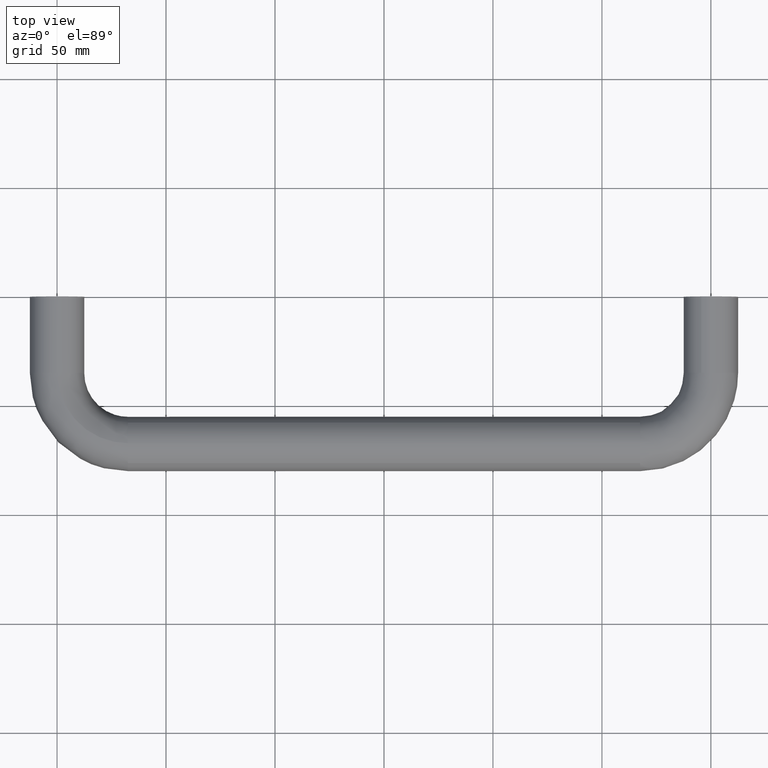
[diagram: clean part render]
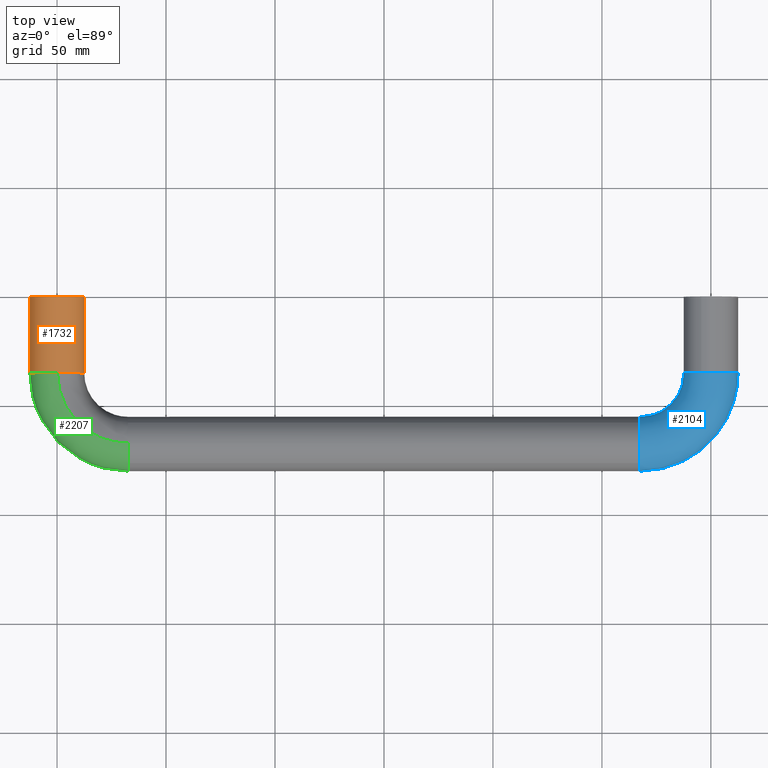
[diagram: same view with three faces highlighted in distinct colors, each labeled with its STEP entity id]
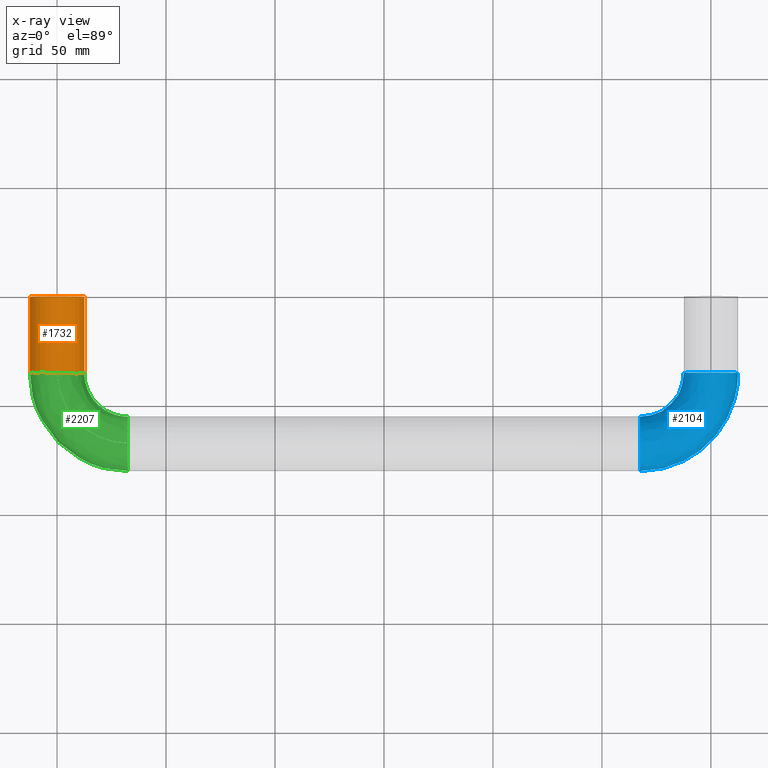
[diagram: x-ray of the same camera — body ghosted, the three highlighted faces saturated]
A machine part, top view with three faces highlighted in distinct colors.
The next image is the same camera in x-ray (body ghosted, the three faces saturated) — at least one of them is partly hidden behind the body in this view.
Their STEP definitions:

[orange] entity #1732 — the highlighted face is a freeform B-spline surface patch.
#1566=CARTESIAN_POINT('',(-4.395224679894646,0.875000000036383,-11.701794734708219));
#1567=CARTESIAN_POINT('',(-2.637368146442596,0.875000000036383,-12.362050242064381));
#1568=CARTESIAN_POINT('',(-0.763106744185705,0.875000000036383,-12.476684980273340));
#1569=CARTESIAN_POINT('',(11.713578236087629,0.875000000036383,-13.239791724459041));
#1570=CARTESIAN_POINT('',(12.476684980273340,0.875000000036383,-0.763106744185705));
#1571=CARTESIAN_POINT('',(13.239791724459041,0.875000000036383,11.713578236087629));
#1572=CARTESIAN_POINT('',(0.763106744185705,0.875000000036383,12.476684980273340));
#1573=CARTESIAN_POINT('',(-11.713578236087629,0.875000000036383,13.239791724459041));
#1574=CARTESIAN_POINT('',(-12.476684980273340,0.875000000036383,0.763106744185705));
#1575=CARTESIAN_POINT('',(-4.395224679894646,-35.896875001492582,-11.701794734708219));
#1576=CARTESIAN_POINT('',(-2.637368146442596,-35.896875001492589,-12.362050242064381));
#1577=CARTESIAN_POINT('',(-0.763106744185705,-35.896875001492582,-12.476684980273340));
#1578=CARTESIAN_POINT('',(11.713578236087629,-35.896875001492575,-13.239791724459041));
#1579=CARTESIAN_POINT('',(12.476684980273340,-35.896875001492582,-0.763106744185705));
#1580=CARTESIAN_POINT('',(13.239791724459041,-35.896875001492575,11.713578236087629));
#1581=CARTESIAN_POINT('',(0.763106744185705,-35.896875001492582,12.476684980273340));
#1582=CARTESIAN_POINT('',(-11.713578236087629,-35.896875001492575,13.239791724459041));
#1583=CARTESIAN_POINT('',(-12.476684980273340,-35.896875001492582,0.763106744185705));
#1591=(BOUNDED_SURFACE()B_SPLINE_SURFACE(2,1,((#1566,#1575),(#1567,#1576),(#1568,#1577),(#1569,#1578),(#1570,#1579),(#1571,#1580),(#1572,#1581),(#1573,#1582),(#1574,#1583)),.UNSPECIFIED.,.F.,.F.,.U.)B_SPLINE_SURFACE_WITH_KNOTS((3,2,2,2,3),(2,2),(0.0,4.142135623730949,24.852813742385699,45.563491861040447,66.274169979695188),(0.0,36.771875001528969),.UNSPECIFIED.)GEOMETRIC_REPRESENTATION_ITEM()RATIONAL_B_SPLINE_SURFACE(((0.906274169979695,0.906274169979695),(0.941421356237309,0.941421356237309),(1.0,1.0),(0.707106781186548,0.707106781186548),(1.0,1.0),(0.707106781186548,0.707106781186548),(1.0,1.0),(0.707106781186548,0.707106781186548),(1.0,1.0)))REPRESENTATION_ITEM('')SURFACE());
#1592=CARTESIAN_POINT('',(-4.395224680045374,-35.0,-11.701794734651610));
#1593=VERTEX_POINT('',#1592);
#1594=CARTESIAN_POINT('',(0.0,-35.0,-12.500000000000000));
#1595=VERTEX_POINT('',#1594);
#1596=CARTESIAN_POINT('',(-4.395224680045374,-35.0,-11.701794734651607));
#1597=CARTESIAN_POINT('',(-2.270092326000824,-35.0,-12.500000000000002));
#1598=CARTESIAN_POINT('',(0.0,-35.0,-12.500000000000000));
#1606=(BOUNDED_CURVE()B_SPLINE_CURVE(2,(#1596,#1597,#1598),.UNSPECIFIED.,.F.,.U.)B_SPLINE_CURVE_WITH_KNOTS((3,3),(0.440284170894841,0.500000000000000),.UNSPECIFIED.)CURVE()GEOMETRIC_REPRESENTATION_ITEM()RATIONAL_B_SPLINE_CURVE((0.893499554630786,0.930038554397103,1.0))REPRESENTATION_ITEM(''));
#1607=EDGE_CURVE('',#1593,#1595,#1606,.T.);
#1608=ORIENTED_EDGE('',*,*,#1607,.F.);
#1609=CARTESIAN_POINT('',(-4.395224680045374,1.225041E-015,-11.701794734651610));
#1610=VERTEX_POINT('',#1609);
#1611=CARTESIAN_POINT('',(-4.395224680045374,1.225041E-015,-11.701794734651610));
#1612=CARTESIAN_POINT('',(-4.395224680045374,-35.0,-11.701794734651610));
#1613=QUASI_UNIFORM_CURVE('',1,(#1611,#1612),.UNSPECIFIED.,.F.,.U.);
#1614=EDGE_CURVE('',#1610,#1593,#1613,.T.);
#1615=ORIENTED_EDGE('',*,*,#1614,.F.);
#1616=CARTESIAN_POINT('',(0.0,0.0,-12.500000000000000));
#1617=VERTEX_POINT('',#1616);
#1618=CARTESIAN_POINT('',(-4.395224680045374,1.225041E-015,-11.701794734651607));
#1619=CARTESIAN_POINT('',(-2.270092326000824,0.0,-12.500000000000002));
#1620=CARTESIAN_POINT('',(0.0,0.0,-12.500000000000000));
#1628=(BOUNDED_CURVE()B_SPLINE_CURVE(2,(#1618,#1619,#1620),.UNSPECIFIED.,.F.,.U.)B_SPLINE_CURVE_WITH_KNOTS((3,3),(0.440284170894841,0.500000000000000),.UNSPECIFIED.)CURVE()GEOMETRIC_REPRESENTATION_ITEM()RATIONAL_B_SPLINE_CURVE((0.893499554630786,0.930038554397103,1.0))REPRESENTATION_ITEM(''));
#1629=EDGE_CURVE('',#1610,#1617,#1628,.T.);
#1630=ORIENTED_EDGE('',*,*,#1629,.T.);
#1631=CARTESIAN_POINT('',(0.0,0.0,12.500000000000000));
#1632=VERTEX_POINT('',#1631);
#1633=CARTESIAN_POINT('',(0.0,0.0,-12.500000000000000));
#1634=CARTESIAN_POINT('',(12.499999999999998,0.0,-12.499999999999998));
#1635=CARTESIAN_POINT('',(12.500000000000000,0.0,0.0));
#1636=CARTESIAN_POINT('',(12.499999999999998,0.0,12.499999999999998));
#1637=CARTESIAN_POINT('',(0.0,0.0,12.500000000000000));
#1645=(BOUNDED_CURVE()B_SPLINE_CURVE(2,(#1633,#1634,#1635,#1636,#1637),.UNSPECIFIED.,.F.,.U.)B_SPLINE_CURVE_WITH_KNOTS((3,2,3),(0.500000000000000,0.750000000000000,1.0),.UNSPECIFIED.)CURVE()GEOMETRIC_REPRESENTATION_ITEM()RATIONAL_B_SPLINE_CURVE((1.0,0.707106781186547,1.0,0.707106781186547,1.0))REPRESENTATION_ITEM(''));
#1646=EDGE_CURVE('',#1617,#1632,#1645,.T.);
#1647=ORIENTED_EDGE('',*,*,#1646,.T.);
#1648=CARTESIAN_POINT('',(-12.476684980227059,1.221245E-015,0.763106744942284));
#1649=VERTEX_POINT('',#1648);
#1650=CARTESIAN_POINT('',(0.0,0.0,12.500000000000000));
#1651=CARTESIAN_POINT('',(-11.758825834892432,0.0,12.500000000000000));
#1652=CARTESIAN_POINT('',(-12.476684980227066,1.221245E-015,0.763106744942284));
#1660=(BOUNDED_CURVE()B_SPLINE_CURVE(2,(#1650,#1651,#1652),.UNSPECIFIED.,.F.,.U.)B_SPLINE_CURVE_WITH_KNOTS((3,3),(0.0,0.239332962221042),.UNSPECIFIED.)CURVE()GEOMETRIC_REPRESENTATION_ITEM()RATIONAL_B_SPLINE_CURVE((1.0,0.719603993307682,0.976072041628353))REPRESENTATION_ITEM(''));
#1661=EDGE_CURVE('',#1632,#1649,#1660,.T.);
#1662=ORIENTED_EDGE('',*,*,#1661,.T.);
#1663=CARTESIAN_POINT('',(-12.476684980227059,-35.0,0.763106744942284));
#1664=VERTEX_POINT('',#1663);
#1665=CARTESIAN_POINT('',(-12.476684980227059,1.221245E-015,0.763106744942284));
#1666=CARTESIAN_POINT('',(-12.476684980227059,-35.0,0.763106744942284));
#1667=QUASI_UNIFORM_CURVE('',1,(#1665,#1666),.UNSPECIFIED.,.F.,.U.);
#1668=EDGE_CURVE('',#1649,#1664,#1667,.T.);
#1669=ORIENTED_EDGE('',*,*,#1668,.T.);
#1670=CARTESIAN_POINT('',(0.0,-35.0,12.500000000000000));
#1671=VERTEX_POINT('',#1670);
#1672=CARTESIAN_POINT('',(0.0,-35.0,12.500000000000000));
#1673=CARTESIAN_POINT('',(-11.758825834892432,-35.000000000000007,12.500000000000000));
#1674=CARTESIAN_POINT('',(-12.476684980227066,-35.0,0.763106744942284));
#1682=(BOUNDED_CURVE()B_SPLINE_CURVE(2,(#1672,#1673,#1674),.UNSPECIFIED.,.F.,.U.)B_SPLINE_CURVE_WITH_KNOTS((3,3),(0.0,0.239332962221042),.UNSPECIFIED.)CURVE()GEOMETRIC_REPRESENTATION_ITEM()RATIONAL_B_SPLINE_CURVE((1.0,0.719603993307682,0.976072041628353))REPRESENTATION_ITEM(''));
#1683=EDGE_CURVE('',#1671,#1664,#1682,.T.);
#1684=ORIENTED_EDGE('',*,*,#1683,.F.);
#1685=CARTESIAN_POINT('',(0.157075500523811,-35.000000001455291,12.499013052522789));
#1686=VERTEX_POINT('',#1685);
#1687=CARTESIAN_POINT('',(0.157075500523811,-35.000000001455298,12.499013052522791));
#1688=CARTESIAN_POINT('',(0.078540851880757,-35.000000000000007,12.499999999999996));
#1689=CARTESIAN_POINT('',(0.0,-35.0,12.500000000000000));
#1697=(BOUNDED_CURVE()B_SPLINE_CURVE(2,(#1687,#1688,#1689),.UNSPECIFIED.,.F.,.U.)B_SPLINE_CURVE_WITH_KNOTS((3,3),(0.997784295865956,1.0),.UNSPECIFIED.)CURVE()GEOMETRIC_REPRESENTATION_ITEM()RATIONAL_B_SPLINE_CURVE((0.994854295515646,0.997404141136966,1.0))REPRESENTATION_ITEM(''));
#1698=EDGE_CURVE('',#1686,#1671,#1697,.T.);
#1699=ORIENTED_EDGE('',*,*,#1698,.F.);
#1700=CARTESIAN_POINT('',(12.469570922963181,-35.000000000001471,-0.871665645297055));
#1701=VERTEX_POINT('',#1700);
#1702=CARTESIAN_POINT('',(12.469570922963182,-35.000000000001464,-0.871665645297055));
#1703=CARTESIAN_POINT('',(12.500000000000000,-35.000000000000007,-0.436363949040137));
#1704=CARTESIAN_POINT('',(12.500000000000000,-35.0,0.0));
#1705=CARTESIAN_POINT('',(12.500000000000000,-35.0,12.343899119926556));
#1706=CARTESIAN_POINT('',(0.157075500523810,-35.000000001455284,12.499013052522795));
#1714=(BOUNDED_CURVE()B_SPLINE_CURVE(2,(#1702,#1703,#1704,#1705,#1706),.UNSPECIFIED.,.F.,.U.)B_SPLINE_CURVE_WITH_KNOTS((3,2,3),(0.737833686518473,0.750000000000000,0.997784295865956),.UNSPECIFIED.)CURVE()GEOMETRIC_REPRESENTATION_ITEM()RATIONAL_B_SPLINE_CURVE((0.972879876351826,0.985746277133208,1.0,0.709702640049581,0.994854295515647))REPRESENTATION_ITEM(''));
#1715=EDGE_CURVE('',#1701,#1686,#1714,.T.);
#1716=ORIENTED_EDGE('',*,*,#1715,.F.);
#1717=CARTESIAN_POINT('',(0.0,-35.0,-12.500000000000000));
#1718=CARTESIAN_POINT('',(11.656710589700749,-35.0,-12.500000000000000));
#1719=CARTESIAN_POINT('',(12.469570922963184,-35.000000000001471,-0.871665645297055));
#1727=(BOUNDED_CURVE()B_SPLINE_CURVE(2,(#1717,#1718,#1719),.UNSPECIFIED.,.F.,.U.)B_SPLINE_CURVE_WITH_KNOTS((3,3),(0.500000000000000,0.737833686518474),.UNSPECIFIED.)CURVE()GEOMETRIC_REPRESENTATION_ITEM()RATIONAL_B_SPLINE_CURVE((1.0,0.721360504053338,0.972879876351828))REPRESENTATION_ITEM(''));
#1728=EDGE_CURVE('',#1595,#1701,#1727,.T.);
#1729=ORIENTED_EDGE('',*,*,#1728,.F.);
#1730=EDGE_LOOP('',(#1608,#1615,#1630,#1647,#1662,#1669,#1684,#1699,#1716,#1729));
#1731=FACE_OUTER_BOUND('',#1730,.T.);
#1732=ADVANCED_FACE('',(#1731),#1591,.T.);

[blue] entity #2104 — the highlighted face is a freeform B-spline surface patch.
#1162=CARTESIAN_POINT('',(295.604775319952520,-35.000002161323252,11.701794734657240));
#1163=VERTEX_POINT('',#1162);
#1164=CARTESIAN_POINT('',(300.0,-35.0,12.500000000000000));
#1165=VERTEX_POINT('',#1164);
#1166=CARTESIAN_POINT('',(295.604775319952580,-35.000002161323238,11.701794734657248));
#1167=CARTESIAN_POINT('',(297.729907673996760,-35.000000037307615,12.500000000000226));
#1168=CARTESIAN_POINT('',(300.0,-35.0,12.500000000000000));
#1176=(BOUNDED_CURVE()B_SPLINE_CURVE(2,(#1166,#1167,#1168),.UNSPECIFIED.,.F.,.U.)B_SPLINE_CURVE_WITH_KNOTS((3,3),(0.940284170894781,1.0),.UNSPECIFIED.)CURVE()GEOMETRIC_REPRESENTATION_ITEM()RATIONAL_B_SPLINE_CURVE((0.893499554630714,0.930038554397034,1.0))REPRESENTATION_ITEM(''));
#1177=EDGE_CURVE('',#1163,#1165,#1176,.T.);
#1179=CARTESIAN_POINT('',(312.469570924250720,-34.999990571972319,-0.871665626850377));
#1180=VERTEX_POINT('',#1179);
#1181=CARTESIAN_POINT('',(300.0,-35.0,12.500000000000000));
#1182=CARTESIAN_POINT('',(312.499999999999150,-34.999995604008383,12.500000000000064));
#1183=CARTESIAN_POINT('',(312.499999999998120,-34.999990889994542,1.333457E-013));
#1184=CARTESIAN_POINT('',(312.499999999998120,-34.999990725432482,-0.436363939479835));
#1185=CARTESIAN_POINT('',(312.469570924250720,-34.999990571972312,-0.871665626850377));
#1193=(BOUNDED_CURVE()B_SPLINE_CURVE(2,(#1181,#1182,#1183,#1184,#1185),.UNSPECIFIED.,.F.,.U.)B_SPLINE_CURVE_WITH_KNOTS((3,2,3),(0.0,0.250000000000000,0.262166313218778),.UNSPECIFIED.)CURVE()GEOMETRIC_REPRESENTATION_ITEM()RATIONAL_B_SPLINE_CURVE((1.0,0.707106781186547,1.0,0.985746277441037,0.972879876907562))REPRESENTATION_ITEM(''));
#1194=EDGE_CURVE('',#1165,#1180,#1193,.T.);
#1196=CARTESIAN_POINT('',(299.843023649620590,-35.000065430862257,-12.499014297760890));
#1197=VERTEX_POINT('',#1196);
#1205=CARTESIAN_POINT('',(287.523315019783010,-35.000034917707318,-0.763106744980262));
#1206=VERTEX_POINT('',#1205);
#1207=CARTESIAN_POINT('',(299.843023649620590,-35.000065430862264,-12.499014297760892));
#1208=CARTESIAN_POINT('',(288.232195049864570,-35.000065240030160,-12.353192758955005));
#1209=CARTESIAN_POINT('',(287.523315019782960,-35.000034917707318,-0.763106744980262));
#1217=(BOUNDED_CURVE()B_SPLINE_CURVE(2,(#1207,#1208,#1209),.UNSPECIFIED.,.F.,.U.)B_SPLINE_CURVE_WITH_KNOTS((3,3),(0.502214309014386,0.739332962217103),.UNSPECIFIED.)CURVE()GEOMETRIC_REPRESENTATION_ITEM()RATIONAL_B_SPLINE_CURVE((0.994857506558048,0.721976836175264,0.976072041619910))REPRESENTATION_ITEM(''));
#1218=EDGE_CURVE('',#1197,#1206,#1217,.T.);
#1296=CARTESIAN_POINT('',(287.523315019782960,-35.000034917707310,-0.763106744980262));
#1297=CARTESIAN_POINT('',(287.500000000002500,-35.000033920408029,-0.381909541930914));
#1298=CARTESIAN_POINT('',(287.500000000002390,-35.000032920861187,1.970231E-010));
#1299=CARTESIAN_POINT('',(287.500000000000850,-35.000010261839670,8.657619945999974));
#1300=CARTESIAN_POINT('',(295.604775319952520,-35.000002161323252,11.701794734657240));
#1308=(BOUNDED_CURVE()B_SPLINE_CURVE(2,(#1296,#1297,#1298,#1299,#1300),.UNSPECIFIED.,.F.,.U.)B_SPLINE_CURVE_WITH_KNOTS((3,2,3),(0.739332962217102,0.750000000000000,0.940284170894782),.UNSPECIFIED.)CURVE()GEOMETRIC_REPRESENTATION_ITEM()RATIONAL_B_SPLINE_CURVE((0.976072041619908,0.987502787874249,1.0,0.777068226789513,0.893499554630714))REPRESENTATION_ITEM(''));
#1309=EDGE_CURVE('',#1206,#1163,#1308,.T.);
#1400=CARTESIAN_POINT('',(267.499999999999890,-76.415631377549772,8.761365027188898));
#1401=VERTEX_POINT('',#1400);
#1407=CARTESIAN_POINT('',(267.500000000000000,-67.500000000000000,12.500000000000000));
#1408=VERTEX_POINT('',#1407);
#1409=CARTESIAN_POINT('',(267.500000000000000,-67.500000000000000,12.500000000000000));
#1410=CARTESIAN_POINT('',(267.500000000000060,-72.741685662085047,12.499999999999996));
#1411=CARTESIAN_POINT('',(267.500000000000000,-76.415631377549801,8.761365027188932));
#1419=(BOUNDED_CURVE()B_SPLINE_CURVE(2,(#1409,#1410,#1411),.UNSPECIFIED.,.F.,.U.)B_SPLINE_CURVE_WITH_KNOTS((3,3),(0.0,0.126316770733848),.UNSPECIFIED.)CURVE()GEOMETRIC_REPRESENTATION_ITEM()RATIONAL_B_SPLINE_CURVE((1.0,0.852010697718570,0.853569641575904))REPRESENTATION_ITEM(''));
#1420=EDGE_CURVE('',#1408,#1401,#1419,.T.);
#1422=CARTESIAN_POINT('',(267.500008139093780,-57.767786944934983,7.844362883664394));
#1423=VERTEX_POINT('',#1422);
#1424=CARTESIAN_POINT('',(267.500008139093720,-57.767786944934983,7.844362883664395));
#1425=CARTESIAN_POINT('',(267.500000064818610,-61.520325734255316,12.500000000000044));
#1426=CARTESIAN_POINT('',(267.500000000000000,-67.500000000000000,12.500000000000000));
#1434=(BOUNDED_CURVE()B_SPLINE_CURVE(2,(#1424,#1425,#1426),.UNSPECIFIED.,.F.,.U.)B_SPLINE_CURVE_WITH_KNOTS((3,3),(0.858839983571529,1.0),.UNSPECIFIED.)CURVE()GEOMETRIC_REPRESENTATION_ITEM()RATIONAL_B_SPLINE_CURVE((0.856001004381435,0.834620753682021,1.0))REPRESENTATION_ITEM(''));
#1435=EDGE_CURVE('',#1423,#1408,#1434,.T.);
#1485=CARTESIAN_POINT('',(267.500043137381790,-67.342952358751191,-12.499013402569821));
#1486=VERTEX_POINT('',#1485);
#1487=CARTESIAN_POINT('',(267.500043137381790,-67.342952358751191,-12.499013402569823));
#1488=CARTESIAN_POINT('',(267.500043003575680,-55.000000000000384,-12.343926637594540));
#1489=CARTESIAN_POINT('',(267.500021704188730,-55.000000000000199,1.525734E-011));
#1490=CARTESIAN_POINT('',(267.500014093941560,-55.000000000000128,4.410471229433765));
#1491=CARTESIAN_POINT('',(267.500008139093720,-57.767786944934983,7.844362883664395));
#1499=(BOUNDED_CURVE()B_SPLINE_CURVE(2,(#1487,#1488,#1489,#1490,#1491),.UNSPECIFIED.,.F.,.U.)B_SPLINE_CURVE_WITH_KNOTS((3,2,3),(0.502215312112750,0.750000000000000,0.858839983571529),.UNSPECIFIED.)CURVE()GEOMETRIC_REPRESENTATION_ITEM()RATIONAL_B_SPLINE_CURVE((0.994855197798004,0.709702180768067,1.0,0.872486027504526,0.856001004381435))REPRESENTATION_ITEM(''));
#1500=EDGE_CURVE('',#1486,#1423,#1499,.T.);
#1502=CARTESIAN_POINT('',(267.500000046265820,-79.969570509738972,-0.871671556615738));
#1503=VERTEX_POINT('',#1502);
#1517=CARTESIAN_POINT('',(267.500000000000000,-76.415631377549801,8.761365027188932));
#1518=CARTESIAN_POINT('',(267.500000000000000,-80.0,5.113884382352103));
#1519=CARTESIAN_POINT('',(267.500000000000000,-80.0,0.0));
#1520=CARTESIAN_POINT('',(267.499999999999940,-80.0,-0.436366915219770));
#1521=CARTESIAN_POINT('',(267.500000046265820,-79.969570509738972,-0.871671556615738));
#1529=(BOUNDED_CURVE()B_SPLINE_CURVE(2,(#1517,#1518,#1519,#1520,#1521),.UNSPECIFIED.,.F.,.U.)B_SPLINE_CURVE_WITH_KNOTS((3,2,3),(0.126316770733848,0.250000000000000,0.262166395003127),.UNSPECIFIED.)CURVE()GEOMETRIC_REPRESENTATION_ITEM()RATIONAL_B_SPLINE_CURVE((0.853569641575904,0.855096083467978,1.0,0.985746181624714,0.972879703926679))REPRESENTATION_ITEM(''));
#1530=EDGE_CURVE('',#1401,#1503,#1529,.T.);
#2027=CARTESIAN_POINT('',(264.374292330506080,-79.841404332121385,-1.148598902949988));
#2028=CARTESIAN_POINT('',(315.935533279137530,-83.435523844705713,-1.148598902949987));
#2029=CARTESIAN_POINT('',(312.341403723285110,-31.874283596149596,-1.148598902949988));
#2030=CARTESIAN_POINT('',(264.373616423316890,-79.851100897113938,-1.009548458866320));
#2031=CARTESIAN_POINT('',(315.946007043360400,-83.445997606888326,-1.009548458866320));
#2032=CARTESIAN_POINT('',(312.351100288145910,-31.873607687071594,-1.009548458866320));
#2033=CARTESIAN_POINT('',(264.371211470476510,-79.885602352181024,-0.514791536977556));
#2034=CARTESIAN_POINT('',(315.983273859597940,-83.483264415866998,-0.514791536977556));
#2035=CARTESIAN_POINT('',(312.385601742744370,-31.871202727510980,-0.514791536977556));
#2036=CARTESIAN_POINT('',(264.370898871358580,-79.890086899337717,-0.157075498541909));
#2037=CARTESIAN_POINT('',(315.988117852249050,-83.488108407574558,-0.157075498541909));
#2038=CARTESIAN_POINT('',(312.390086289840210,-31.870890127519523,-0.157075498541909));
#2039=CARTESIAN_POINT('',(264.359976295807880,-80.046782175544536,12.341937554005787));
#2040=CARTESIAN_POINT('',(316.157372570704980,-83.657363093062429,12.341937554005789));
#2041=CARTESIAN_POINT('',(312.546781563919520,-31.859967521447292,12.341937554005789));
#2042=CARTESIAN_POINT('',(265.229121488036070,-67.578024662360434,12.499013052547701));
#2043=CARTESIAN_POINT('',(302.689219008736640,-70.189212154465139,12.499013052547699));
#2044=CARTESIAN_POINT('',(300.078024220030730,-32.729115142381055,12.499013052547703));
#2045=CARTESIAN_POINT('',(266.098266680264200,-55.109267149176382,12.656088551089606));
#2046=CARTESIAN_POINT('',(289.221065446768080,-56.721061215867834,12.656088551089608));
#2047=CARTESIAN_POINT('',(287.609266876141760,-33.598262763314807,12.656088551089606));
#2048=CARTESIAN_POINT('',(266.109189255814730,-54.952571872969564,0.157075498541910));
#2049=CARTESIAN_POINT('',(289.051810728312320,-56.551806530379963,0.157075498541910));
#2050=CARTESIAN_POINT('',(287.452571602062450,-33.609185369387042,0.157075498541910));
#2051=CARTESIAN_POINT('',(266.120111831365420,-54.795876596762739,-12.341937554005783));
#2052=CARTESIAN_POINT('',(288.882556009856500,-56.382551844892092,-12.341937554005785));
#2053=CARTESIAN_POINT('',(287.295876327983310,-33.620107975459291,-12.341937554005789));
#2054=CARTESIAN_POINT('',(265.241662950979500,-67.398104826525284,-12.500694453386972));
#2055=CARTESIAN_POINT('',(302.494878235382830,-69.994871418965744,-12.500694453386966));
#2056=CARTESIAN_POINT('',(299.898104386638350,-32.741656640369889,-12.500694453386968));
#2057=CARTESIAN_POINT('',(265.232441402103580,-67.530397172911478,-12.502361009676950));
#2058=CARTESIAN_POINT('',(302.637774080002370,-70.137767235751568,-12.502361009676951));
#2059=CARTESIAN_POINT('',(300.030396731228390,-32.732435065725603,-12.502361009676950));
#2067=(BOUNDED_SURFACE()B_SPLINE_SURFACE(2,2,((#2027,#2030,#2033,#2036,#2039,#2042,#2045,#2048,#2051,#2054,#2057),(#2028,#2031,#2034,#2037,#2040,#2043,#2046,#2049,#2052,#2055,#2058),(#2029,#2032,#2035,#2038,#2041,#2044,#2047,#2050,#2053,#2056,#2059)),.UNSPECIFIED.,.F.,.F.,.U.)B_SPLINE_SURFACE_WITH_KNOTS((3,3),(3,1,2,2,2,1,3),(0.0,82.005037651817702),(0.0,0.315255943468113,1.143682278164633,21.854360396819430,42.565038515474221,63.275716634129019,63.590637933985228),.UNSPECIFIED.)GEOMETRIC_REPRESENTATION_ITEM()RATIONAL_B_SPLINE_SURFACE(((0.888212576109309,0.891971155980889,0.905606493487623,0.916342098722506,0.647951711893397,0.916342098722506,0.647951711893397,0.916342098722506,0.647951711893397,0.920423174629577,0.924504250536647),(0.582867236379211,0.585333710195709,0.594281558608823,0.601326530412223,0.425202067361861,0.601326530412223,0.425202067361861,0.601326530412223,0.425202067361861,0.604004634167326,0.606682737922428),(0.888212654931082,0.891971235136206,0.905606573852967,0.916342180040550,0.647951769393937,0.916342180040550,0.647951769393937,0.916342180040550,0.647951769393937,0.920423256309783,0.924504332579017)))REPRESENTATION_ITEM('')SURFACE());
#2068=ORIENTED_EDGE('',*,*,#1194,.F.);
#2069=ORIENTED_EDGE('',*,*,#1177,.F.);
#2070=ORIENTED_EDGE('',*,*,#1309,.F.);
#2071=ORIENTED_EDGE('',*,*,#1218,.F.);
#2072=CARTESIAN_POINT('',(267.500043137381740,-67.342952358751191,-12.499013402569823));
#2073=CARTESIAN_POINT('',(299.842908645082730,-67.342895292990690,-12.499013850165355));
#2074=CARTESIAN_POINT('',(299.843023649620590,-35.000065430862257,-12.499014297760883));
#2082=(BOUNDED_CURVE()B_SPLINE_CURVE(2,(#2072,#2073,#2074),.UNSPECIFIED.,.F.,.U.)B_SPLINE_CURVE_WITH_KNOTS((3,3),(-1.734749405767442,-0.265251310458692),.UNSPECIFIED.)CURVE()GEOMETRIC_REPRESENTATION_ITEM()RATIONAL_B_SPLINE_CURVE((0.889029232426397,0.628639564279990,0.889028978601237))REPRESENTATION_ITEM(''));
#2083=EDGE_CURVE('',#1486,#1197,#2082,.T.);
#2084=ORIENTED_EDGE('',*,*,#2083,.F.);
#2085=ORIENTED_EDGE('',*,*,#1500,.T.);
#2086=ORIENTED_EDGE('',*,*,#1435,.T.);
#2087=ORIENTED_EDGE('',*,*,#1420,.T.);
#2088=ORIENTED_EDGE('',*,*,#1530,.T.);
#2089=CARTESIAN_POINT('',(267.500000046265710,-79.969570509738986,-0.871671556615738));
#2090=CARTESIAN_POINT('',(312.469580351657100,-79.969570670106407,-0.871668591733059));
#2091=CARTESIAN_POINT('',(312.469570924250720,-34.999990571972319,-0.871665626850377));
#2099=(BOUNDED_CURVE()B_SPLINE_CURVE(2,(#2089,#2090,#2091),.UNSPECIFIED.,.F.,.U.)B_SPLINE_CURVE_WITH_KNOTS((3,3),(-1.734750790589356,-0.265248990491789),.UNSPECIFIED.)CURVE()GEOMETRIC_REPRESENTATION_ITEM()RATIONAL_B_SPLINE_CURVE((0.869031711504920,0.614498178984388,0.869031787343136))REPRESENTATION_ITEM(''));
#2100=EDGE_CURVE('',#1503,#1180,#2099,.T.);
#2101=ORIENTED_EDGE('',*,*,#2100,.T.);
#2102=EDGE_LOOP('',(#2068,#2069,#2070,#2071,#2084,#2085,#2086,#2087,#2088,#2101));
#2103=FACE_OUTER_BOUND('',#2102,.T.);
#2104=ADVANCED_FACE('',(#2103),#2067,.T.);

[green] entity #2207 — the highlighted face is a freeform B-spline surface patch.
#1355=CARTESIAN_POINT('',(32.499999999301892,-67.342924500712314,12.499013052538331));
#1356=VERTEX_POINT('',#1355);
#1370=CARTESIAN_POINT('',(32.500000000000000,-67.500000000000000,12.500000000000000));
#1371=VERTEX_POINT('',#1370);
#1372=CARTESIAN_POINT('',(32.499999999301899,-67.342924500712314,12.499013052538333));
#1373=CARTESIAN_POINT('',(32.500000000000000,-67.421459149355528,12.499999999999998));
#1374=CARTESIAN_POINT('',(32.500000000000000,-67.500000000000000,12.500000000000000));
#1382=(BOUNDED_CURVE()B_SPLINE_CURVE(2,(#1372,#1373,#1374),.UNSPECIFIED.,.F.,.U.)B_SPLINE_CURVE_WITH_KNOTS((3,3),(0.997784295900742,1.0),.UNSPECIFIED.)CURVE()GEOMETRIC_REPRESENTATION_ITEM()RATIONAL_B_SPLINE_CURVE((0.994854295595709,0.997404141177720,1.0))REPRESENTATION_ITEM(''));
#1383=EDGE_CURVE('',#1356,#1371,#1382,.T.);
#1385=CARTESIAN_POINT('',(32.499999999999993,-76.415631368133688,8.761365036770771));
#1386=VERTEX_POINT('',#1385);
#1387=CARTESIAN_POINT('',(32.500000000000000,-67.500000000000000,12.500000000000000));
#1388=CARTESIAN_POINT('',(32.500000000000000,-72.741685654186853,12.499999999999995));
#1389=CARTESIAN_POINT('',(32.499999999999993,-76.415631368133731,8.761365036770808));
#1397=(BOUNDED_CURVE()B_SPLINE_CURVE(2,(#1387,#1388,#1389),.UNSPECIFIED.,.F.,.U.)B_SPLINE_CURVE_WITH_KNOTS((3,3),(0.0,0.126316770571681),.UNSPECIFIED.)CURVE()GEOMETRIC_REPRESENTATION_ITEM()RATIONAL_B_SPLINE_CURVE((1.0,0.852010697908560,0.853569641571901))REPRESENTATION_ITEM(''));
#1398=EDGE_CURVE('',#1371,#1386,#1397,.T.);
#1467=CARTESIAN_POINT('',(32.499999999823679,-55.030429077045000,-0.871665645414162));
#1468=VERTEX_POINT('',#1467);
#1533=CARTESIAN_POINT('',(32.500000000000000,-67.500000000000000,-12.500000000000000));
#1534=VERTEX_POINT('',#1533);
#1535=CARTESIAN_POINT('',(32.499999999999993,-76.415631368133731,8.761365036770808));
#1536=CARTESIAN_POINT('',(32.500000000000000,-80.0,5.113884390193396));
#1537=CARTESIAN_POINT('',(32.500000000000000,-80.0,0.0));
#1538=CARTESIAN_POINT('',(32.499999999999993,-80.0,-12.499999999999998));
#1539=CARTESIAN_POINT('',(32.500000000000000,-67.500000000000000,-12.500000000000000));
#1547=(BOUNDED_CURVE()B_SPLINE_CURVE(2,(#1535,#1536,#1537,#1538,#1539),.UNSPECIFIED.,.F.,.U.)B_SPLINE_CURVE_WITH_KNOTS((3,2,3),(0.126316770571681,0.250000000000000,0.500000000000000),.UNSPECIFIED.)CURVE()GEOMETRIC_REPRESENTATION_ITEM()RATIONAL_B_SPLINE_CURVE((0.853569641571901,0.855096083277987,1.0,0.707106781186547,1.0))REPRESENTATION_ITEM(''));
#1548=EDGE_CURVE('',#1386,#1534,#1547,.T.);
#1550=CARTESIAN_POINT('',(32.500000000000000,-67.500000000000000,-12.500000000000000));
#1551=CARTESIAN_POINT('',(32.500000000000000,-55.843289410518757,-12.499999999999998));
#1552=CARTESIAN_POINT('',(32.499999999823679,-55.030429077045007,-0.871665645414162));
#1560=(BOUNDED_CURVE()B_SPLINE_CURVE(2,(#1550,#1551,#1552),.UNSPECIFIED.,.F.,.U.)B_SPLINE_CURVE_WITH_KNOTS((3,3),(0.500000000000000,0.737833686515243),.UNSPECIFIED.)CURVE()GEOMETRIC_REPRESENTATION_ITEM()RATIONAL_B_SPLINE_CURVE((1.0,0.721360504057123,0.972879876344994))REPRESENTATION_ITEM(''));
#1561=EDGE_CURVE('',#1534,#1468,#1560,.T.);
#1592=CARTESIAN_POINT('',(-4.395224680045374,-35.0,-11.701794734651610));
#1593=VERTEX_POINT('',#1592);
#1594=CARTESIAN_POINT('',(0.0,-35.0,-12.500000000000000));
#1595=VERTEX_POINT('',#1594);
#1596=CARTESIAN_POINT('',(-4.395224680045374,-35.0,-11.701794734651607));
#1597=CARTESIAN_POINT('',(-2.270092326000824,-35.0,-12.500000000000002));
#1598=CARTESIAN_POINT('',(0.0,-35.0,-12.500000000000000));
#1606=(BOUNDED_CURVE()B_SPLINE_CURVE(2,(#1596,#1597,#1598),.UNSPECIFIED.,.F.,.U.)B_SPLINE_CURVE_WITH_KNOTS((3,3),(0.440284170894841,0.500000000000000),.UNSPECIFIED.)CURVE()GEOMETRIC_REPRESENTATION_ITEM()RATIONAL_B_SPLINE_CURVE((0.893499554630786,0.930038554397103,1.0))REPRESENTATION_ITEM(''));
#1607=EDGE_CURVE('',#1593,#1595,#1606,.T.);
#1663=CARTESIAN_POINT('',(-12.476684980227059,-35.0,0.763106744942284));
#1664=VERTEX_POINT('',#1663);
#1670=CARTESIAN_POINT('',(0.0,-35.0,12.500000000000000));
#1671=VERTEX_POINT('',#1670);
#1672=CARTESIAN_POINT('',(0.0,-35.0,12.500000000000000));
#1673=CARTESIAN_POINT('',(-11.758825834892432,-35.000000000000007,12.500000000000000));
#1674=CARTESIAN_POINT('',(-12.476684980227066,-35.0,0.763106744942284));
#1682=(BOUNDED_CURVE()B_SPLINE_CURVE(2,(#1672,#1673,#1674),.UNSPECIFIED.,.F.,.U.)B_SPLINE_CURVE_WITH_KNOTS((3,3),(0.0,0.239332962221042),.UNSPECIFIED.)CURVE()GEOMETRIC_REPRESENTATION_ITEM()RATIONAL_B_SPLINE_CURVE((1.0,0.719603993307682,0.976072041628353))REPRESENTATION_ITEM(''));
#1683=EDGE_CURVE('',#1671,#1664,#1682,.T.);
#1685=CARTESIAN_POINT('',(0.157075500523811,-35.000000001455291,12.499013052522789));
#1686=VERTEX_POINT('',#1685);
#1687=CARTESIAN_POINT('',(0.157075500523811,-35.000000001455298,12.499013052522791));
#1688=CARTESIAN_POINT('',(0.078540851880757,-35.000000000000007,12.499999999999996));
#1689=CARTESIAN_POINT('',(0.0,-35.0,12.500000000000000));
#1697=(BOUNDED_CURVE()B_SPLINE_CURVE(2,(#1687,#1688,#1689),.UNSPECIFIED.,.F.,.U.)B_SPLINE_CURVE_WITH_KNOTS((3,3),(0.997784295865956,1.0),.UNSPECIFIED.)CURVE()GEOMETRIC_REPRESENTATION_ITEM()RATIONAL_B_SPLINE_CURVE((0.994854295515646,0.997404141136966,1.0))REPRESENTATION_ITEM(''));
#1698=EDGE_CURVE('',#1686,#1671,#1697,.T.);
#1700=CARTESIAN_POINT('',(12.469570922963181,-35.000000000001471,-0.871665645297055));
#1701=VERTEX_POINT('',#1700);
#1717=CARTESIAN_POINT('',(0.0,-35.0,-12.500000000000000));
#1718=CARTESIAN_POINT('',(11.656710589700749,-35.0,-12.500000000000000));
#1719=CARTESIAN_POINT('',(12.469570922963184,-35.000000000001471,-0.871665645297055));
#1727=(BOUNDED_CURVE()B_SPLINE_CURVE(2,(#1717,#1718,#1719),.UNSPECIFIED.,.F.,.U.)B_SPLINE_CURVE_WITH_KNOTS((3,3),(0.500000000000000,0.737833686518474),.UNSPECIFIED.)CURVE()GEOMETRIC_REPRESENTATION_ITEM()RATIONAL_B_SPLINE_CURVE((1.0,0.721360504053338,0.972879876351828))REPRESENTATION_ITEM(''));
#1728=EDGE_CURVE('',#1595,#1701,#1727,.T.);
#1747=CARTESIAN_POINT('',(-12.476684980227066,-35.0,0.763106744942284));
#1748=CARTESIAN_POINT('',(-12.500000000000004,-35.000000000000007,0.381909541991057));
#1749=CARTESIAN_POINT('',(-12.500000000000000,-35.0,0.0));
#1750=CARTESIAN_POINT('',(-12.500000000000000,-35.000000000000007,-8.657619945942017));
#1751=CARTESIAN_POINT('',(-4.395224680045374,-34.999999999999993,-11.701794734651603));
#1759=(BOUNDED_CURVE()B_SPLINE_CURVE(2,(#1747,#1748,#1749,#1750,#1751),.UNSPECIFIED.,.F.,.U.)B_SPLINE_CURVE_WITH_KNOTS((3,2,3),(0.239332962221042,0.250000000000000,0.440284170894841),.UNSPECIFIED.)CURVE()GEOMETRIC_REPRESENTATION_ITEM()RATIONAL_B_SPLINE_CURVE((0.976072041628353,0.987502787878865,1.0,0.777068226789444,0.893499554630786))REPRESENTATION_ITEM(''));
#1760=EDGE_CURVE('',#1664,#1593,#1759,.T.);
#2135=CARTESIAN_POINT('',(12.536023190854348,-33.615886805902093,-0.606598025069896));
#2136=CARTESIAN_POINT('',(10.944486650306089,-56.571667244886726,-0.606598025069896));
#2137=CARTESIAN_POINT('',(33.899068383122753,-54.962934329139294,-0.606598025069896));
#2138=CARTESIAN_POINT('',(12.526818397189624,-33.615248632632202,-0.738592849988808));
#2139=CARTESIAN_POINT('',(10.934548046659236,-56.581613296612353,-0.738592849988808));
#2140=CARTESIAN_POINT('',(33.899713451783789,-54.972138642147613,-0.738592849988808));
#2141=CARTESIAN_POINT('',(11.696349228770707,-33.557671760835113,-12.647347839919878));
#2142=CARTESIAN_POINT('',(10.037873530479553,-57.478959788723259,-12.647347839919876));
#2143=CARTESIAN_POINT('',(33.957912435272945,-55.802564445083163,-12.647347839919879));
#2144=CARTESIAN_POINT('',(-0.078870558547338,-32.741289472534568,-12.499013052547699));
#2145=CARTESIAN_POINT('',(-2.676071679316352,-70.202432943183467,-12.499013052547697));
#2146=CARTESIAN_POINT('',(34.783115643343734,-67.577169353345980,-12.499013052547690));
#2147=CARTESIAN_POINT('',(-12.547951825996599,-31.876801396559184,-12.341937554005790));
#2148=CARTESIAN_POINT('',(-16.139193295235668,-83.675643943290638,-12.341937554005790));
#2149=CARTESIAN_POINT('',(35.656944416771523,-80.045599509644234,-12.341937554005792));
#2150=CARTESIAN_POINT('',(-12.391252481159530,-31.887665445980243,0.157075498541906));
#2151=CARTESIAN_POINT('',(-15.970001813407443,-83.506325667847207,0.157075498541906));
#2152=CARTESIAN_POINT('',(35.645962982505523,-79.888908347341911,0.157075498541906));
#2153=CARTESIAN_POINT('',(-12.234553136322470,-31.898529495401302,12.656088551089603));
#2154=CARTESIAN_POINT('',(-15.800810331579218,-83.337007392403791,12.656088551089603));
#2155=CARTESIAN_POINT('',(35.634981548239523,-79.732217185039573,12.656088551089603));
#2156=CARTESIAN_POINT('',(0.366857022794581,-32.772192004239876,12.497346079160934));
#2157=CARTESIAN_POINT('',(-2.194810509670979,-69.720811112097607,12.497346079160934));
#2158=CARTESIAN_POINT('',(34.751879213222480,-67.131465047030701,12.497346079160934));
#2159=CARTESIAN_POINT('',(0.498027605843177,-32.781286130946739,12.495693697218401));
#2160=CARTESIAN_POINT('',(-2.053182953146475,-69.579077418610950,12.495693697218394));
#2161=CARTESIAN_POINT('',(34.742686825488640,-67.000301313454614,12.495693697218398));
#2169=(BOUNDED_SURFACE()B_SPLINE_SURFACE(2,2,((#2135,#2138,#2141,#2144,#2147,#2150,#2153,#2156,#2159),(#2136,#2139,#2142,#2145,#2148,#2151,#2154,#2157,#2160),(#2137,#2140,#2143,#2146,#2149,#2152,#2155,#2158,#2161)),.UNSPECIFIED.,.F.,.F.,.U.)B_SPLINE_SURFACE_WITH_KNOTS((3,3),(3,1,2,2,1,3),(0.0,82.004379108096245),(0.0,0.306786472785430,20.189037466694000,40.899715585348758,61.610393704003513,61.922600854532760),.UNSPECIFIED.)GEOMETRIC_REPRESENTATION_ITEM()RATIONAL_B_SPLINE_SURFACE(((0.908116124272278,0.904437980495069,0.662386295974072,0.921487970695580,0.651590392860676,0.921487970695580,0.651590392860676,0.925556594292926,0.929625217890271),(0.592626787537368,0.590226470581720,0.432266152092013,0.601353110281207,0.425220862167464,0.601353110281207,0.425220862167464,0.604008250155665,0.606663390030123),(0.898083513777929,0.894446005094484,0.655068439230114,0.911307631818076,0.644391806205615,0.911307631818076,0.644391806205615,0.915331306410873,0.919354981003670)))REPRESENTATION_ITEM('')SURFACE());
#2170=ORIENTED_EDGE('',*,*,#1561,.F.);
#2171=ORIENTED_EDGE('',*,*,#1548,.F.);
#2172=ORIENTED_EDGE('',*,*,#1398,.F.);
#2173=ORIENTED_EDGE('',*,*,#1383,.F.);
#2174=CARTESIAN_POINT('',(0.157075500523811,-35.000000001455298,12.499013052522795));
#2175=CARTESIAN_POINT('',(0.157075501452491,-67.342924500061898,12.499013052547699));
#2176=CARTESIAN_POINT('',(32.499999999301892,-67.342924500712328,12.499013052538329));
#2184=(BOUNDED_CURVE()B_SPLINE_CURVE(2,(#2174,#2175,#2176),.UNSPECIFIED.,.F.,.U.)B_SPLINE_CURVE_WITH_KNOTS((3,3),(-1.747842683575237,-0.278273130990951),.UNSPECIFIED.)CURVE()GEOMETRIC_REPRESENTATION_ITEM()RATIONAL_B_SPLINE_CURVE((0.893710737930178,0.628668022913911,0.884455039439697))REPRESENTATION_ITEM(''));
#2185=EDGE_CURVE('',#1686,#1356,#2184,.T.);
#2186=ORIENTED_EDGE('',*,*,#2185,.F.);
#2187=ORIENTED_EDGE('',*,*,#1698,.T.);
#2188=ORIENTED_EDGE('',*,*,#1683,.T.);
#2189=ORIENTED_EDGE('',*,*,#1760,.T.);
#2190=ORIENTED_EDGE('',*,*,#1607,.T.);
#2191=ORIENTED_EDGE('',*,*,#1728,.T.);
#2192=CARTESIAN_POINT('',(12.469570922963182,-35.000000000001478,-0.871665645297055));
#2193=CARTESIAN_POINT('',(12.469570923008348,-55.030429076641951,-0.871665644693026));
#2194=CARTESIAN_POINT('',(32.499999999823672,-55.030429077045007,-0.871665645414162));
#2202=(BOUNDED_CURVE()B_SPLINE_CURVE(2,(#2192,#2193,#2194),.UNSPECIFIED.,.F.,.U.)B_SPLINE_CURVE_WITH_KNOTS((3,3),(-1.747842683669086,-0.278273130964526),.UNSPECIFIED.)CURVE()GEOMETRIC_REPRESENTATION_ITEM()RATIONAL_B_SPLINE_CURVE((0.873607430592732,0.614526639152126,0.864559931603779))REPRESENTATION_ITEM(''));
#2203=EDGE_CURVE('',#1701,#1468,#2202,.T.);
#2204=ORIENTED_EDGE('',*,*,#2203,.T.);
#2205=EDGE_LOOP('',(#2170,#2171,#2172,#2173,#2186,#2187,#2188,#2189,#2190,#2191,#2204));
#2206=FACE_OUTER_BOUND('',#2205,.T.);
#2207=ADVANCED_FACE('',(#2206),#2169,.T.);